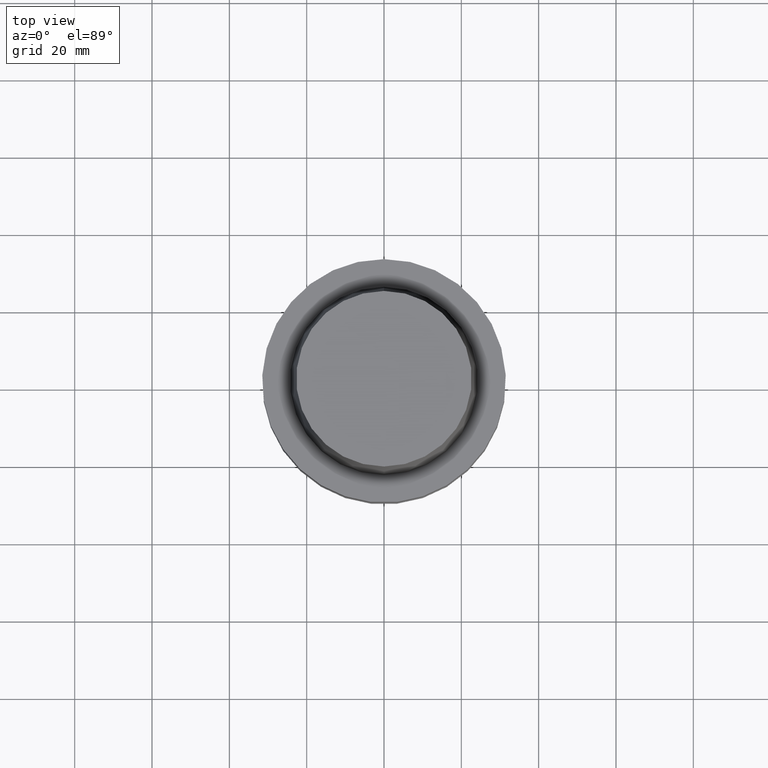
[diagram: clean part render]
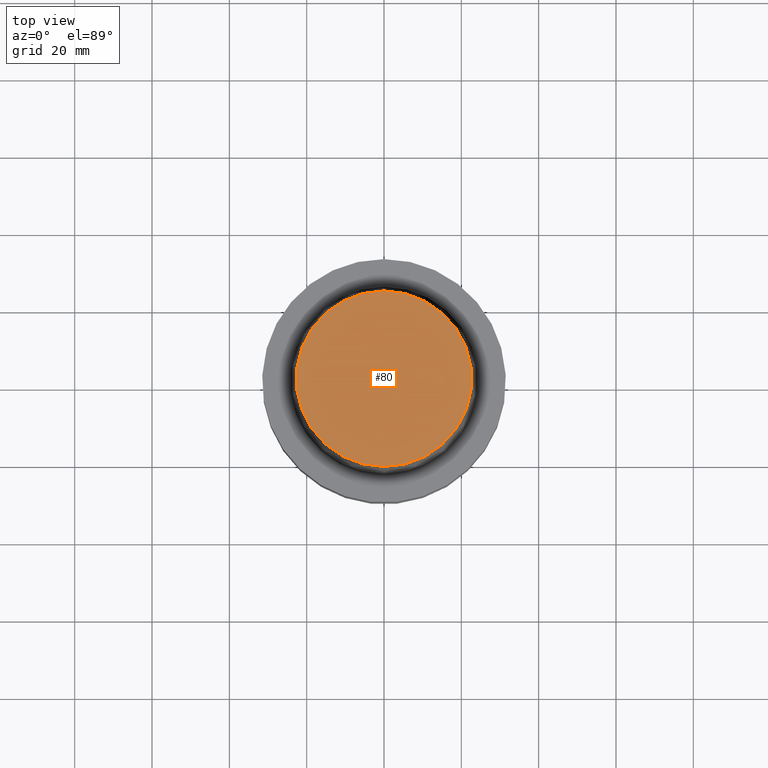
[diagram: same view with one face highlighted and labeled with its STEP entity id]
A machine part, top view. The second image highlights one B-rep face of the part: STEP entity #80.
In plain terms, the highlighted planar face has unit normal (-0, -0, 1).
Its self-contained STEP definition (entity closure, byte-faithful):
#80=ADVANCED_FACE('',(#110),#111,.T.);
#110=FACE_OUTER_BOUND('',#168,.T.);
#111=PLANE('',#169);
#168=EDGE_LOOP('',(#236));
#169=AXIS2_PLACEMENT_3D('',#237,#238,#239);
#236=ORIENTED_EDGE('',*,*,#315,.F.);
#237=CARTESIAN_POINT('',(-1.95943487863577E-015,11.3574999984407,32.0));
#238=DIRECTION('',(-6.12323399573677E-017,-1.22464679914735E-016,1.0));
#239=DIRECTION('',(1.23259516440783E-032,-1.0,-1.22464679914735E-016));
#315=EDGE_CURVE('',#339,#339,#340,.T.);
#339=VERTEX_POINT('',#377);
#340=CIRCLE('',#378,22.7149999968815);
#377=CARTESIAN_POINT('',(-1.95943487863577E-015,22.7149999968815,32.0));
#378=AXIS2_PLACEMENT_3D('',#420,#421,#422);
#420=CARTESIAN_POINT('',(-1.95943487863577E-015,-3.91886975727153E-015,32.0));
#421=DIRECTION('',(6.12323399573677E-017,1.22464679914735E-016,-1.0));
#422=DIRECTION('',(-1.23259516440783E-032,1.0,1.22464679914735E-016));